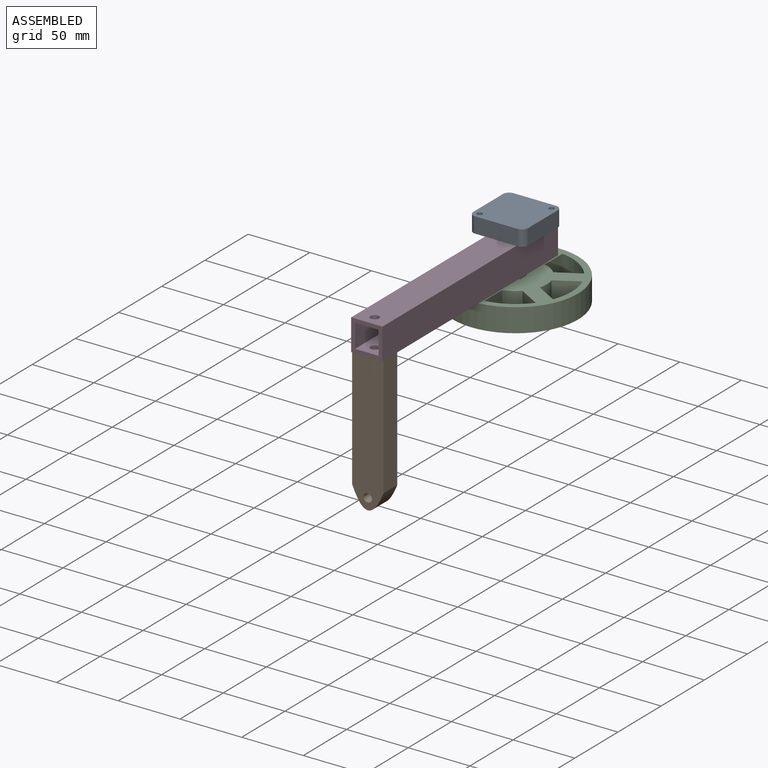
[diagram: assembled view]
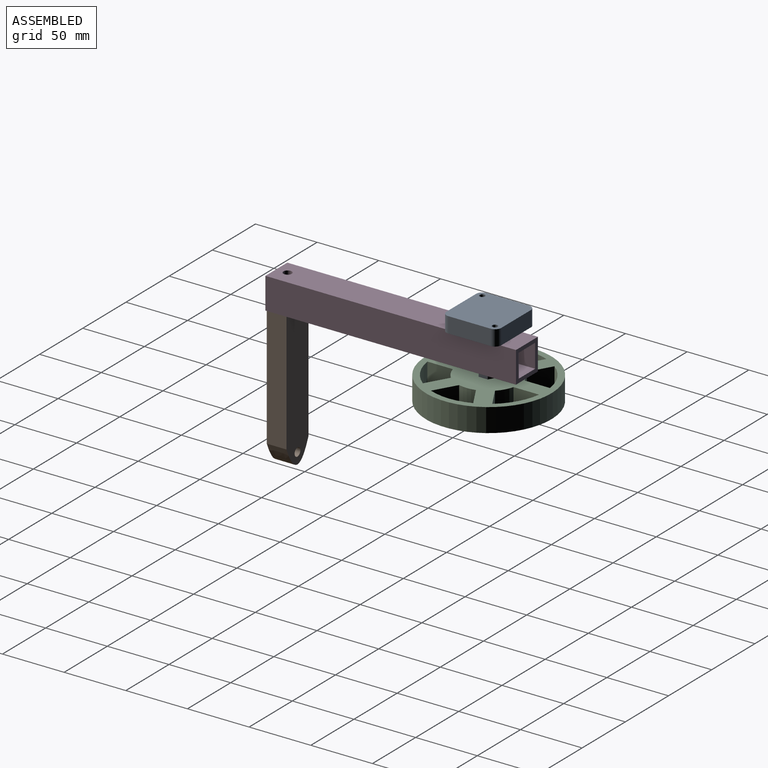
[diagram: assembled view, second angle]
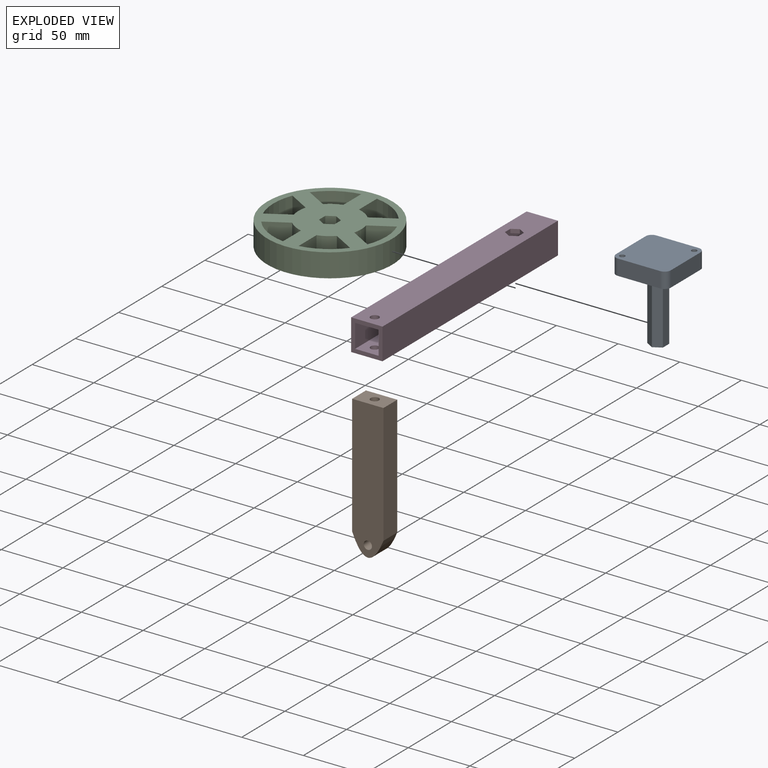
[diagram: exploded view]
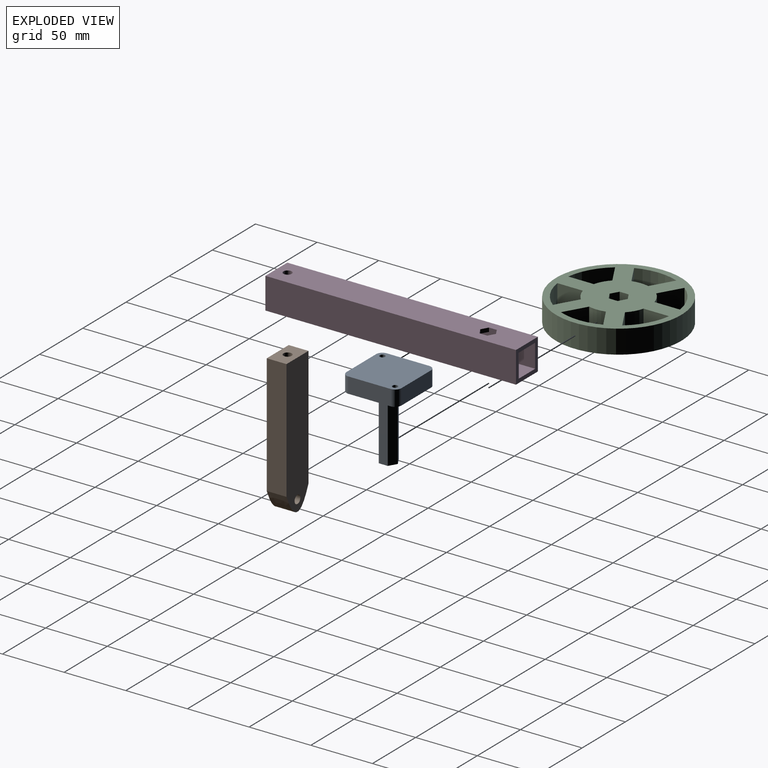
[diagram: exploded view, second angle]
ASSEMBLY  parts=4 mates=3
PART A: 25 faces, bbox 44.6x66.2x44.6 mm
  f0: plane 14.84x12.87mm, normal (0,-1,0), area 103.8mm2, adj f1,f13,f14,f15,f16,f17,f18,f23
  f1: cylinder r=3.35mm len=20.32mm, axis (0,-1,0), area 417.3mm2, adj f0,f22,f23
  f2: plane 34.29x12.7mm, normal (0,0,1), area 435.5mm2, adj f6,f8,f10,f19
  f3: plane 34.29x12.7mm, normal (1,0,0), area 435.5mm2, adj f6,f10,f11,f19
  f4: plane 34.29x12.7mm, normal (-1,0,0), area 435.5mm2, adj f6,f8,f9,f19
  f5: plane 21.59x21.59mm, normal (0,-1,0), area 226.2mm2, adj f12,f13,f14,f15,f16,f17,f18
  f6: plane 44.45x44.45mm, normal (0,-1,0), area 1558.4mm2, adj f2,f3,f4,f7,f8,f9,f10,f11
  f7: plane 34.29x12.7mm, normal (0,0,-1), area 435.5mm2, adj f6,f9,f11,f19
  f8: cylinder r=5.08mm len=12.7mm, axis (0,-1,0), area 101.3mm2, adj f2,f4,f6,f19
  f9: cylinder r=5.08mm len=12.7mm, axis (0,1,0), area 101.3mm2, adj f4,f6,f7,f19
  f10: cylinder r=5.08mm len=12.7mm, axis (0,1,0), area 101.3mm2, adj f2,f3,f6,f19
  f11: cylinder r=5.08mm len=12.7mm, axis (0,-1,0), area 101.3mm2, adj f3,f6,f7,f19
  f12: cylinder r=10.79mm len=21.59mm, axis (0,1,0), area 172.2mm2, adj f5,f6
  f13: plane 50.8x6.35mm, normal (0.87,0,-0.5), area 372.5mm2, adj f0,f5,f14,f18
  f14: plane 50.8x6.35mm, normal (0.87,0,0.5), area 372.5mm2, adj f0,f5,f13,f15
  f15: plane 50.8x7.33mm, normal (0,0,1), area 372.5mm2, adj f0,f5,f14,f16
  f16: plane 50.8x6.35mm, normal (-0.87,0,0.5), area 372.5mm2, adj f0,f5,f15,f17
  f17: plane 50.8x6.35mm, normal (-0.87,0,-0.5), area 372.5mm2, adj f0,f5,f16,f18
  f18: plane 50.8x7.33mm, normal (0,0,-1), area 372.5mm2, adj f0,f5,f13,f17
  f19: plane 44.45x44.45mm, normal (0,1,0), area 1924.4mm2, adj f2,f3,f4,f7,f8,f9,f10,f11
  f20: cylinder r=2.16mm len=12.7mm, axis (0,1,0), area 172.3mm2, adj f6,f19
  f21: cylinder r=2.16mm len=12.7mm, axis (0,1,0), area 172.3mm2, adj f6,f19
  f22: cone r=0mm half-angle=59deg, axis (0,-1,0), area 41.2mm2, adj f1,f24
  f23: bspline ~20.32x8.26mm, area 156.7mm2, adj f0,f1,f24
  f24: plane 1.09x0.97mm, normal (0,-1,0), area 0.6mm2, adj f22,f23
PART B: 9 faces, bbox 16x118.9x25.4 mm
  f0: plane 118.94x25.4mm, normal (-1,0,0), area 2702.3mm2, adj f1,f2,f4,f5,f6
  f1: plane 97.28x16mm, normal (0,0,-1), area 1556.7mm2, adj f0,f3,f4,f5
  f2: plane 97.28x16mm, normal (0,0,1), area 1556.7mm2, adj f0,f3,f4,f5
  f3: plane 118.94x25.4mm, normal (1,0,0), area 2702.3mm2, adj f1,f2,f4,f5,f6
  f4: plane 25.4x16mm, normal (0,1,0), area 371.1mm2, adj f0,f1,f2,f3,f8
  f5: extruded ~25.4x16mm, area 677.8mm2, adj f0,f1,f2,f3
  f6: cylinder r=3.35mm len=16mm, axis (-1,0,0), area 337.1mm2, adj f0,f3
  f7: cone r=0mm half-angle=59deg, axis (0,1,0), area 41.2mm2, adj f8
  f8: cylinder r=3.35mm len=25.4mm, axis (0,1,0), area 535.1mm2, adj f4,f7
PART C: 33 faces, bbox 101.6x101.6x19.1 mm
  f0: plane 101.6x101.6mm, normal (0,0,1), area 4985.2mm2, adj f2,f3,f4,f5,f6,f7,f8,f9
  f1: plane 101.6x101.6mm, normal (0,0,-1), area 4985.2mm2, adj f2,f3,f4,f5,f6,f7,f8,f9
  f2: plane 19.05x17.91mm, normal (0.5,-0.87,0), area 394mm2, adj f0,f1,f3,f26
  f3: cylinder r=25.4mm len=19.05mm, axis (0,0,-1), area 262.2mm2, adj f0,f1,f2,f4
  f4: plane 20.68x19.05mm, normal (-1,0,0), area 394mm2, adj f0,f1,f3,f26
  f5: cylinder r=45.72mm len=29.69mm, axis (0,0,-1), area 669.4mm2, adj f0,f1,f6,f21
  f6: plane 19.05x17.91mm, normal (-0.5,0.87,0), area 394mm2, adj f0,f1,f5,f7
  f7: cylinder r=25.4mm len=19.05mm, axis (0,0,-1), area 262.2mm2, adj f0,f1,f6,f21
  f8: cylinder r=45.72mm len=34.28mm, axis (0,0,-1), area 669.4mm2, adj f0,f1,f9,f22
  f9: plane 19.05x17.91mm, normal (0.5,0.87,0), area 394mm2, adj f0,f1,f8,f10
  f10: cylinder r=25.4mm len=19.05mm, axis (0,0,-1), area 262.2mm2, adj f0,f1,f9,f22
  f11: cylinder r=45.72mm len=29.69mm, axis (0,0,-1), area 669.4mm2, adj f0,f1,f12,f23
  f12: plane 20.68x19.05mm, normal (1,0,0), area 394mm2, adj f0,f1,f11,f13
  f13: cylinder r=25.4mm len=19.05mm, axis (0,0,-1), area 262.2mm2, adj f0,f1,f12,f23
  f14: cylinder r=45.72mm len=34.28mm, axis (0,0,-1), area 669.4mm2, adj f0,f1,f15,f24
  f15: plane 19.05x17.91mm, normal (-0.5,-0.87,0), area 394mm2, adj f0,f1,f14,f16
  f16: cylinder r=25.4mm len=19.05mm, axis (0,0,-1), area 262.2mm2, adj f0,f1,f15,f24
  f17: plane 20.68x19.05mm, normal (-1,0,0), area 394mm2, adj f0,f1,f18,f25
  f18: cylinder r=25.4mm len=19.05mm, axis (0,0,-1), area 262.2mm2, adj f0,f1,f17,f19
  f19: plane 19.05x17.91mm, normal (0.5,0.87,0), area 394mm2, adj f0,f1,f18,f25
  f20: cylinder r=50.8mm len=101.6mm, axis (0,0,-1), area 6080.5mm2, adj f0,f1
  f21: plane 20.68x19.05mm, normal (1,0,0), area 394mm2, adj f0,f1,f5,f7
  f22: plane 19.05x17.91mm, normal (0.5,-0.87,0), area 394mm2, adj f0,f1,f8,f10
  f23: plane 19.05x17.91mm, normal (-0.5,-0.87,0), area 394mm2, adj f0,f1,f11,f13
  f24: plane 19.05x17.91mm, normal (-0.5,0.87,0), area 394mm2, adj f0,f1,f14,f16
  f25: cylinder r=45.72mm len=29.69mm, axis (0,0,-1), area 669.4mm2, adj f0,f1,f17,f19
  f26: cylinder r=45.72mm len=29.69mm, axis (0,0,-1), area 669.4mm2, adj f0,f1,f2,f4
  f27: plane 19.05x6.35mm, normal (-0.5,-0.87,0), area 139.6mm2, adj f0,f1,f28,f32
  f28: plane 19.05x6.35mm, normal (0.5,-0.87,0), area 139.6mm2, adj f0,f1,f27,f29
  f29: plane 19.05x7.33mm, normal (1,0,0), area 139.6mm2, adj f0,f1,f28,f30
  f30: plane 19.05x6.35mm, normal (0.5,0.87,0), area 139.6mm2, adj f0,f1,f29,f31
  f31: plane 19.05x6.35mm, normal (-0.5,0.87,0), area 139.6mm2, adj f0,f1,f30,f32
  f32: plane 19.05x7.33mm, normal (-1,0,0), area 139.6mm2, adj f0,f1,f27,f31
PART D: 24 faces, bbox 25.4x203.2x25.4 mm
  f0: plane 203.2x25.4mm, normal (0,0,1), area 5021.2mm2, adj f4,f5,f6,f7,f11,f18,f19,f20
  f1: plane 203.2x25.4mm, normal (0,0,-1), area 5021.2mm2, adj f4,f5,f6,f7,f10,f12,f13,f14
  f2: plane 203.2x19.05mm, normal (0,0,-1), area 3730.9mm2, adj f4,f5,f8,f9,f11,f18,f19,f20
  f3: plane 203.2x19.05mm, normal (0,0,1), area 3730.9mm2, adj f4,f5,f8,f9,f10,f12,f13,f14
  f4: plane 25.4x25.4mm, normal (0,1,0), area 282.3mm2, adj f0,f1,f2,f3,f6,f7,f8,f9
  f5: plane 25.4x25.4mm, normal (0,-1,0), area 282.3mm2, adj f0,f1,f2,f3,f6,f7,f8,f9
  f6: plane 203.2x25.4mm, normal (-1,0,0), area 5161.3mm2, adj f0,f1,f4,f5
  f7: plane 203.2x25.4mm, normal (1,0,0), area 5161.3mm2, adj f0,f1,f4,f5
  f8: plane 203.2x19.05mm, normal (1,0,0), area 3871mm2, adj f2,f3,f4,f5
  f9: plane 203.2x19.05mm, normal (-1,0,0), area 3871mm2, adj f2,f3,f4,f5
  f10: cylinder r=3.35mm len=6.71mm, axis (0,0,1), area 66.9mm2, adj f1,f3
  f11: cylinder r=3.35mm len=6.71mm, axis (0,0,1), area 66.9mm2, adj f0,f2
  f12: plane 5.5x3.18mm, normal (-0.5,-0.87,0), area 20.2mm2, adj f1,f3,f13,f17
  f13: plane 5.5x3.18mm, normal (0.5,-0.87,0), area 20.2mm2, adj f1,f3,f12,f14
  f14: plane 6.35x3.18mm, normal (1,0,0), area 20.2mm2, adj f1,f3,f13,f15
  f15: plane 5.5x3.18mm, normal (0.5,0.87,0), area 20.2mm2, adj f1,f3,f14,f16
  f16: plane 5.5x3.18mm, normal (-0.5,0.87,0), area 20.2mm2, adj f1,f3,f15,f17
  f17: plane 6.35x3.18mm, normal (-1,0,0), area 20.2mm2, adj f1,f3,f12,f16
  f18: plane 6.35x3.18mm, normal (-1,0,0), area 20.2mm2, adj f0,f2,f19,f23
  f19: plane 5.5x3.18mm, normal (-0.5,0.87,0), area 20.2mm2, adj f0,f2,f18,f20
  f20: plane 5.5x3.18mm, normal (0.5,0.87,0), area 20.2mm2, adj f0,f2,f19,f21
  f21: plane 6.35x3.18mm, normal (1,0,0), area 20.2mm2, adj f0,f2,f20,f22
  f22: plane 5.5x3.18mm, normal (0.5,-0.87,0), area 20.2mm2, adj f0,f2,f21,f23
  f23: plane 5.5x3.18mm, normal (-0.5,-0.87,0), area 20.2mm2, adj f0,f2,f18,f22
PLACE A rot(axis=(0.58,0.58,0.58),120deg) t=(212.08,-129.56,167.77)mm
PLACE B rot(axis=(0.58,-0.58,-0.58),120deg) t=(266.72,-323.16,101.41)mm
PLACE C rot(axis=(0,-1,0),180deg) t=(212.08,-107.33,95.51)mm
PLACE D t=(212.06,-279.52,114.11)mm
MATE fastened C.f32 <-> A.f18  axis (1,0,0) through (205.73,-107.33,85.98)mm
MATE fastened A.f17 <-> D.f15  axis (-0.5,-0.87,0) through (208.91,-112.83,76.33)mm
MATE revolute B.f7 <-> D.f10  axis (0,0,1) through (212.06,-270.38,101.41)mm
